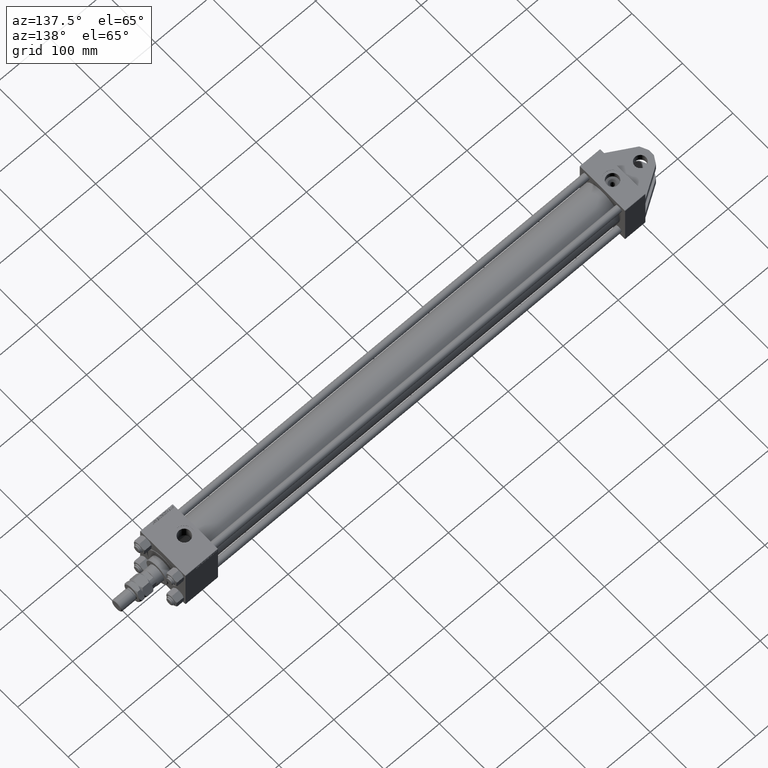
[diagram: clean part render]
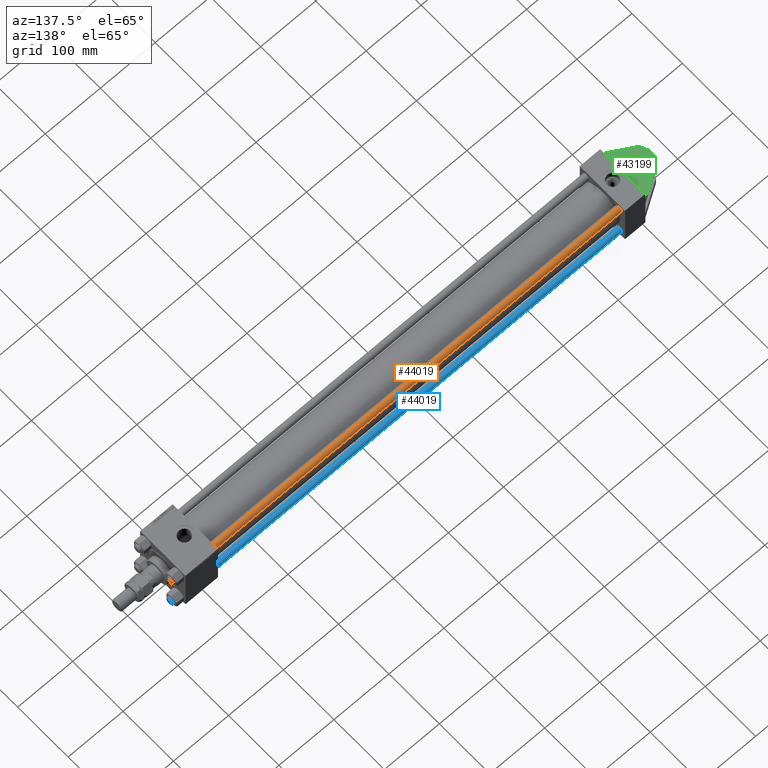
[diagram: same view with three faces highlighted in distinct colors, each labeled with its STEP entity id]
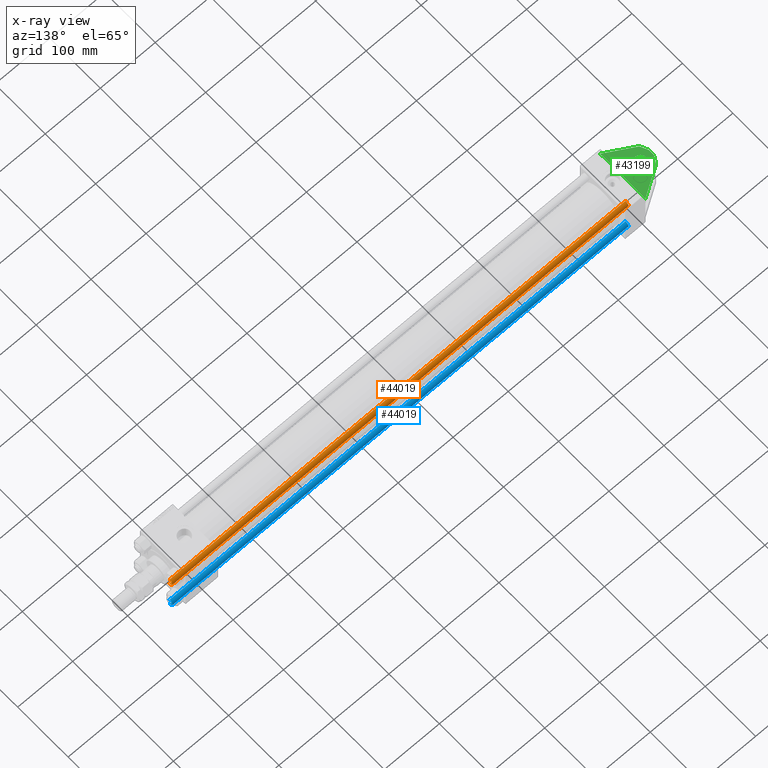
[diagram: x-ray of the same camera — body ghosted, the three highlighted faces saturated]
A machine part, auxiliary view with three faces highlighted in distinct colors.
The next image is the same camera in x-ray (body ghosted, the three faces saturated) — at least one of them is partly hidden behind the body in this view.
Their STEP definitions:

[orange] entity #44019 — the highlighted cylindrical surface (edge-blend (fillet) strip) has radius 6 mm, axis along (-1, 0, -0).
#200 = CARTESIAN_POINT ( 'NONE',  ( 6.000000000000000888, 7.347880794884120722E-16, 830.0000000000000000 ) ) ;
#2116 = DIRECTION ( 'NONE',  ( -0.000000000000000000, -0.000000000000000000, 1.000000000000000000 ) ) ;
#2788 = FACE_OUTER_BOUND ( 'NONE', #30517, .T. ) ;
#5529 = EDGE_CURVE ( 'NONE', #30707, #39138, #19649, .T. ) ;
#7073 = AXIS2_PLACEMENT_3D ( 'NONE', #37598, #25895, #22001 ) ;
#7638 = AXIS2_PLACEMENT_3D ( 'NONE', #15099, #31185, #11960 ) ;
#9234 = ORIENTED_EDGE ( 'NONE', *, *, #5529, .T. ) ;
#11960 = DIRECTION ( 'NONE',  ( 1.000000000000000000, 0.000000000000000000, 0.000000000000000000 ) ) ;
#14285 = CARTESIAN_POINT ( 'NONE',  ( 6.000000000000000888, 7.347880794884120722E-16, 829.5000000000001137 ) ) ;
#15099 = CARTESIAN_POINT ( 'NONE',  ( 0.000000000000000000, 0.000000000000000000, 829.5000000000001137 ) ) ;
#19649 = CIRCLE ( 'NONE', #44525, 6.000000000000000888 ) ;
#20295 = CARTESIAN_POINT ( 'NONE',  ( -6.000000000000000888, 0.000000000000000000, 829.5000000000001137 ) ) ;
#20930 = VECTOR ( 'NONE', #35509, 1000.000000000000000 ) ;
#21746 = CYLINDRICAL_SURFACE ( 'NONE', #7073, 6.000000000000000888 ) ;
#22001 = DIRECTION ( 'NONE',  ( -1.000000000000000000, 0.000000000000000000, 0.000000000000000000 ) ) ;
#22478 = EDGE_CURVE ( 'NONE', #50436, #29938, #44142, .T. ) ;
#24028 = ORIENTED_EDGE ( 'NONE', *, *, #33864, .T. ) ;
#25110 = DIRECTION ( 'NONE',  ( -0.000000000000000000, -0.000000000000000000, -1.000000000000000000 ) ) ;
#25895 = DIRECTION ( 'NONE',  ( -0.000000000000000000, -0.000000000000000000, -1.000000000000000000 ) ) ;
#26920 = VECTOR ( 'NONE', #25110, 1000.000000000000000 ) ;
#29938 = VERTEX_POINT ( 'NONE', #14285 ) ;
#30517 = EDGE_LOOP ( 'NONE', ( #45928, #24028, #9234, #45382 ) ) ;
#30707 = VERTEX_POINT ( 'NONE', #43898 ) ;
#31185 = DIRECTION ( 'NONE',  ( 0.000000000000000000, 0.000000000000000000, -1.000000000000000000 ) ) ;
#33864 = EDGE_CURVE ( 'NONE', #29938, #30707, #36018, .T. ) ;
#35509 = DIRECTION ( 'NONE',  ( -0.000000000000000000, -0.000000000000000000, -1.000000000000000000 ) ) ;
#36018 = LINE ( 'NONE', #200, #20930 ) ;
#36280 = LINE ( 'NONE', #43817, #26920 ) ;
#36426 = CARTESIAN_POINT ( 'NONE',  ( -6.000000000000000888, 0.000000000000000000, 0.5000000000001669775 ) ) ;
#37598 = CARTESIAN_POINT ( 'NONE',  ( 0.000000000000000000, 0.000000000000000000, 830.0000000000000000 ) ) ;
#39138 = VERTEX_POINT ( 'NONE', #36426 ) ;
#41838 = DIRECTION ( 'NONE',  ( 1.000000000000000000, 0.000000000000000000, 0.000000000000000000 ) ) ;
#43148 = EDGE_CURVE ( 'NONE', #50436, #39138, #36280, .T. ) ;
#43817 = CARTESIAN_POINT ( 'NONE',  ( -6.000000000000000888, 0.000000000000000000, 830.0000000000000000 ) ) ;
#43898 = CARTESIAN_POINT ( 'NONE',  ( 6.000000000000000888, 7.347880794884120722E-16, 0.5000000000001669775 ) ) ;
#44019 = ADVANCED_FACE ( 'NONE', ( #2788 ), #21746, .T. ) ;
#44142 = CIRCLE ( 'NONE', #7638, 6.000000000000000888 ) ;
#44525 = AXIS2_PLACEMENT_3D ( 'NONE', #45991, #2116, #41838 ) ;
#45382 = ORIENTED_EDGE ( 'NONE', *, *, #43148, .F. ) ;
#45928 = ORIENTED_EDGE ( 'NONE', *, *, #22478, .T. ) ;
#45991 = CARTESIAN_POINT ( 'NONE',  ( 0.000000000000000000, 0.000000000000000000, 0.5000000000001669775 ) ) ;
#50436 = VERTEX_POINT ( 'NONE', #20295 ) ;

[blue] entity #44019 — the highlighted cylindrical surface (edge-blend (fillet) strip) has radius 6 mm, axis along (1, -0, -0).
#200 = CARTESIAN_POINT ( 'NONE',  ( 6.000000000000000888, 7.347880794884120722E-16, 830.0000000000000000 ) ) ;
#2116 = DIRECTION ( 'NONE',  ( -0.000000000000000000, -0.000000000000000000, 1.000000000000000000 ) ) ;
#2788 = FACE_OUTER_BOUND ( 'NONE', #30517, .T. ) ;
#5529 = EDGE_CURVE ( 'NONE', #30707, #39138, #19649, .T. ) ;
#7073 = AXIS2_PLACEMENT_3D ( 'NONE', #37598, #25895, #22001 ) ;
#7638 = AXIS2_PLACEMENT_3D ( 'NONE', #15099, #31185, #11960 ) ;
#9234 = ORIENTED_EDGE ( 'NONE', *, *, #5529, .T. ) ;
#11960 = DIRECTION ( 'NONE',  ( 1.000000000000000000, 0.000000000000000000, 0.000000000000000000 ) ) ;
#14285 = CARTESIAN_POINT ( 'NONE',  ( 6.000000000000000888, 7.347880794884120722E-16, 829.5000000000001137 ) ) ;
#15099 = CARTESIAN_POINT ( 'NONE',  ( 0.000000000000000000, 0.000000000000000000, 829.5000000000001137 ) ) ;
#19649 = CIRCLE ( 'NONE', #44525, 6.000000000000000888 ) ;
#20295 = CARTESIAN_POINT ( 'NONE',  ( -6.000000000000000888, 0.000000000000000000, 829.5000000000001137 ) ) ;
#20930 = VECTOR ( 'NONE', #35509, 1000.000000000000000 ) ;
#21746 = CYLINDRICAL_SURFACE ( 'NONE', #7073, 6.000000000000000888 ) ;
#22001 = DIRECTION ( 'NONE',  ( -1.000000000000000000, 0.000000000000000000, 0.000000000000000000 ) ) ;
#22478 = EDGE_CURVE ( 'NONE', #50436, #29938, #44142, .T. ) ;
#24028 = ORIENTED_EDGE ( 'NONE', *, *, #33864, .T. ) ;
#25110 = DIRECTION ( 'NONE',  ( -0.000000000000000000, -0.000000000000000000, -1.000000000000000000 ) ) ;
#25895 = DIRECTION ( 'NONE',  ( -0.000000000000000000, -0.000000000000000000, -1.000000000000000000 ) ) ;
#26920 = VECTOR ( 'NONE', #25110, 1000.000000000000000 ) ;
#29938 = VERTEX_POINT ( 'NONE', #14285 ) ;
#30517 = EDGE_LOOP ( 'NONE', ( #45928, #24028, #9234, #45382 ) ) ;
#30707 = VERTEX_POINT ( 'NONE', #43898 ) ;
#31185 = DIRECTION ( 'NONE',  ( 0.000000000000000000, 0.000000000000000000, -1.000000000000000000 ) ) ;
#33864 = EDGE_CURVE ( 'NONE', #29938, #30707, #36018, .T. ) ;
#35509 = DIRECTION ( 'NONE',  ( -0.000000000000000000, -0.000000000000000000, -1.000000000000000000 ) ) ;
#36018 = LINE ( 'NONE', #200, #20930 ) ;
#36280 = LINE ( 'NONE', #43817, #26920 ) ;
#36426 = CARTESIAN_POINT ( 'NONE',  ( -6.000000000000000888, 0.000000000000000000, 0.5000000000001669775 ) ) ;
#37598 = CARTESIAN_POINT ( 'NONE',  ( 0.000000000000000000, 0.000000000000000000, 830.0000000000000000 ) ) ;
#39138 = VERTEX_POINT ( 'NONE', #36426 ) ;
#41838 = DIRECTION ( 'NONE',  ( 1.000000000000000000, 0.000000000000000000, 0.000000000000000000 ) ) ;
#43148 = EDGE_CURVE ( 'NONE', #50436, #39138, #36280, .T. ) ;
#43817 = CARTESIAN_POINT ( 'NONE',  ( -6.000000000000000888, 0.000000000000000000, 830.0000000000000000 ) ) ;
#43898 = CARTESIAN_POINT ( 'NONE',  ( 6.000000000000000888, 7.347880794884120722E-16, 0.5000000000001669775 ) ) ;
#44019 = ADVANCED_FACE ( 'NONE', ( #2788 ), #21746, .T. ) ;
#44142 = CIRCLE ( 'NONE', #7638, 6.000000000000000888 ) ;
#44525 = AXIS2_PLACEMENT_3D ( 'NONE', #45991, #2116, #41838 ) ;
#45382 = ORIENTED_EDGE ( 'NONE', *, *, #43148, .F. ) ;
#45928 = ORIENTED_EDGE ( 'NONE', *, *, #22478, .T. ) ;
#45991 = CARTESIAN_POINT ( 'NONE',  ( 0.000000000000000000, 0.000000000000000000, 0.5000000000001669775 ) ) ;
#50436 = VERTEX_POINT ( 'NONE', #20295 ) ;

[green] entity #43199 — the highlighted planar face has unit normal (0, 0, 1).
#124 = VERTEX_POINT ( 'NONE', #4137 ) ;
#1748 = DIRECTION ( 'NONE',  ( 0.000000000000000000, 0.000000000000000000, 1.000000000000000000 ) ) ;
#1898 = VECTOR ( 'NONE', #47580, 999.9999999999998863 ) ;
#2793 = AXIS2_PLACEMENT_3D ( 'NONE', #37699, #34054, #25489 ) ;
#3838 = VECTOR ( 'NONE', #49131, 1000.000000000000114 ) ;
#4137 = CARTESIAN_POINT ( 'NONE',  ( -32.00000000000000000, -30.00000000000000000, 10.00000000000000000 ) ) ;
#4752 = CARTESIAN_POINT ( 'NONE',  ( -52.00000000000000711, -30.00000000000000000, -5.000000000000000000 ) ) ;
#4866 = FACE_OUTER_BOUND ( 'NONE', #30004, .T. ) ;
#7074 = VERTEX_POINT ( 'NONE', #41783 ) ;
#8116 = LINE ( 'NONE', #19535, #1898 ) ;
#8551 = VECTOR ( 'NONE', #17216, 1000.000000000000227 ) ;
#8755 = LINE ( 'NONE', #44582, #39496 ) ;
#9018 = DIRECTION ( 'NONE',  ( 0.000000000000000000, -1.000000000000000000, 0.000000000000000000 ) ) ;
#9487 = AXIS2_PLACEMENT_3D ( 'NONE', #40817, #32255, #48866 ) ;
#10703 = ORIENTED_EDGE ( 'NONE', *, *, #15182, .F. ) ;
#11791 = ORIENTED_EDGE ( 'NONE', *, *, #42478, .T. ) ;
#13242 = VECTOR ( 'NONE', #18648, 999.9999999999998863 ) ;
#13283 = CARTESIAN_POINT ( 'NONE',  ( 0.000000000000000000, -30.00000000000000000, -45.00000000000000000 ) ) ;
#13310 = CARTESIAN_POINT ( 'NONE',  ( -52.00000000000000711, -30.00000000000000000, -5.000000000000000000 ) ) ;
#14630 = ORIENTED_EDGE ( 'NONE', *, *, #45697, .F. ) ;
#14756 = CARTESIAN_POINT ( 'NONE',  ( -52.00000000000000711, -30.00000000000000000, 5.000000000000000000 ) ) ;
#15182 = EDGE_CURVE ( 'NONE', #7074, #48239, #49558, .T. ) ;
#15831 = ORIENTED_EDGE ( 'NONE', *, *, #46395, .F. ) ;
#17216 = DIRECTION ( 'NONE',  ( -0.4226182617406930020, 0.000000000000000000, 0.9063077870366529343 ) ) ;
#18395 = ORIENTED_EDGE ( 'NONE', *, *, #36064, .T. ) ;
#18546 = CIRCLE ( 'NONE', #2793, 10.00000000000000000 ) ;
#18648 = DIRECTION ( 'NONE',  ( 0.5111096117992851573, 0.000000000000000000, 0.8595155407125482094 ) ) ;
#19535 = CARTESIAN_POINT ( 'NONE',  ( -46.14251089227400371, -30.00000000000000000, -17.56142592832800631 ) ) ;
#22912 = ORIENTED_EDGE ( 'NONE', *, *, #45937, .F. ) ;
#22946 = CARTESIAN_POINT ( 'NONE',  ( -46.14251089227400371, -30.00000000000000000, -17.56142592832800631 ) ) ;
#23035 = ORIENTED_EDGE ( 'NONE', *, *, #37365, .F. ) ;
#24591 = DIRECTION ( 'NONE',  ( 0.000000000000000000, 0.000000000000000000, -1.000000000000000000 ) ) ;
#24730 = LINE ( 'NONE', #13310, #51099 ) ;
#25219 = CARTESIAN_POINT ( 'NONE',  ( -32.00000000000000000, -30.00000000000000000, -10.00000000000000000 ) ) ;
#25489 = DIRECTION ( 'NONE',  ( 0.000000000000000000, 0.000000000000000000, 1.000000000000000000 ) ) ;
#25638 = VERTEX_POINT ( 'NONE', #25219 ) ;
#26117 = AXIS2_PLACEMENT_3D ( 'NONE', #28744, #9018, #1748 ) ;
#28744 = CARTESIAN_POINT ( 'NONE',  ( 0.000000000000000000, -30.00000000000000000, 0.000000000000000000 ) ) ;
#29408 = DIRECTION ( 'NONE',  ( 0.000000000000000000, 0.000000000000000000, 1.000000000000000000 ) ) ;
#29489 = VERTEX_POINT ( 'NONE', #22946 ) ;
#29767 = CARTESIAN_POINT ( 'NONE',  ( -44.91602078046192048, -30.00000000000000000, 16.91288539427591431 ) ) ;
#30004 = EDGE_LOOP ( 'NONE', ( #10703, #15831, #47890, #23035, #22912, #14630 ) ) ;
#31862 = CIRCLE ( 'NONE', #9487, 10.00000000000000000 ) ;
#32255 = DIRECTION ( 'NONE',  ( -0.000000000000000000, 1.000000000000000000, -0.000000000000000000 ) ) ;
#33300 = LINE ( 'NONE', #33559, #3838 ) ;
#33559 = CARTESIAN_POINT ( 'NONE',  ( -44.91602078046192048, -30.00000000000000000, 16.91288539427591431 ) ) ;
#34054 = DIRECTION ( 'NONE',  ( -0.000000000000000000, 1.000000000000000000, -0.000000000000000000 ) ) ;
#35356 = EDGE_CURVE ( 'NONE', #29489, #36079, #48621, .T. ) ;
#35568 = VERTEX_POINT ( 'NONE', #47208 ) ;
#36064 = EDGE_CURVE ( 'NONE', #25638, #124, #18546, .T. ) ;
#36079 = VERTEX_POINT ( 'NONE', #48855 ) ;
#36566 = VERTEX_POINT ( 'NONE', #13283 ) ;
#37365 = EDGE_CURVE ( 'NONE', #36566, #29489, #8116, .T. ) ;
#37699 = CARTESIAN_POINT ( 'NONE',  ( -32.00000000000000000, -30.00000000000000000, 0.000000000000000000 ) ) ;
#39496 = VECTOR ( 'NONE', #24591, 1000.000000000000000 ) ;
#40817 = CARTESIAN_POINT ( 'NONE',  ( -32.00000000000000000, -30.00000000000000000, 0.000000000000000000 ) ) ;
#41783 = CARTESIAN_POINT ( 'NONE',  ( -52.00000000000000711, -30.00000000000000000, 5.000000000000000000 ) ) ;
#42478 = EDGE_CURVE ( 'NONE', #124, #25638, #31862, .T. ) ;
#43199 = ADVANCED_FACE ( 'NONE', ( #48229, #4866 ), #48480, .T. ) ;
#44188 = EDGE_LOOP ( 'NONE', ( #11791, #18395 ) ) ;
#44582 = CARTESIAN_POINT ( 'NONE',  ( 0.000000000000000000, -30.00000000000000000, 45.00000000000000000 ) ) ;
#45697 = EDGE_CURVE ( 'NONE', #48239, #35568, #33300, .T. ) ;
#45937 = EDGE_CURVE ( 'NONE', #35568, #36566, #8755, .T. ) ;
#46395 = EDGE_CURVE ( 'NONE', #36079, #7074, #24730, .T. ) ;
#47208 = CARTESIAN_POINT ( 'NONE',  ( 0.000000000000000000, -29.99999999999997158, 45.00000000000000000 ) ) ;
#47580 = DIRECTION ( 'NONE',  ( -0.8595155407125480984, 0.000000000000000000, 0.5111096117992853793 ) ) ;
#47890 = ORIENTED_EDGE ( 'NONE', *, *, #35356, .F. ) ;
#48229 = FACE_BOUND ( 'NONE', #44188, .T. ) ;
#48239 = VERTEX_POINT ( 'NONE', #29767 ) ;
#48480 = PLANE ( 'NONE',  #26117 ) ;
#48621 = LINE ( 'NONE', #4752, #8551 ) ;
#48855 = CARTESIAN_POINT ( 'NONE',  ( -52.00000000000000711, -30.00000000000000000, -5.000000000000000000 ) ) ;
#48866 = DIRECTION ( 'NONE',  ( 0.000000000000000000, 0.000000000000000000, 1.000000000000000000 ) ) ;
#49131 = DIRECTION ( 'NONE',  ( 0.8478744008358545248, 0.000000000000000000, 0.5301971335335947666 ) ) ;
#49558 = LINE ( 'NONE', #14756, #13242 ) ;
#51099 = VECTOR ( 'NONE', #29408, 1000.000000000000000 ) ;